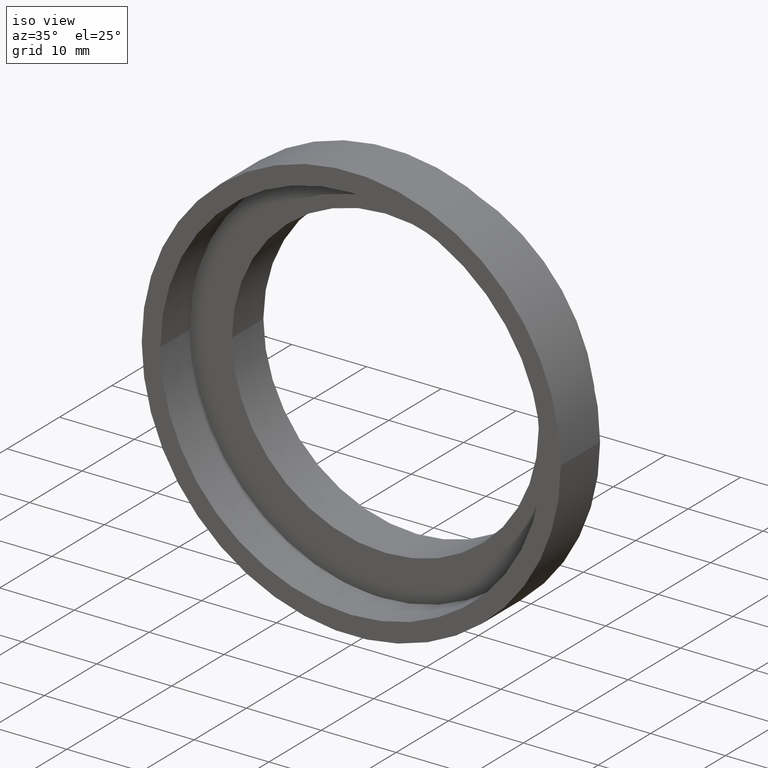
[diagram: clean part render]
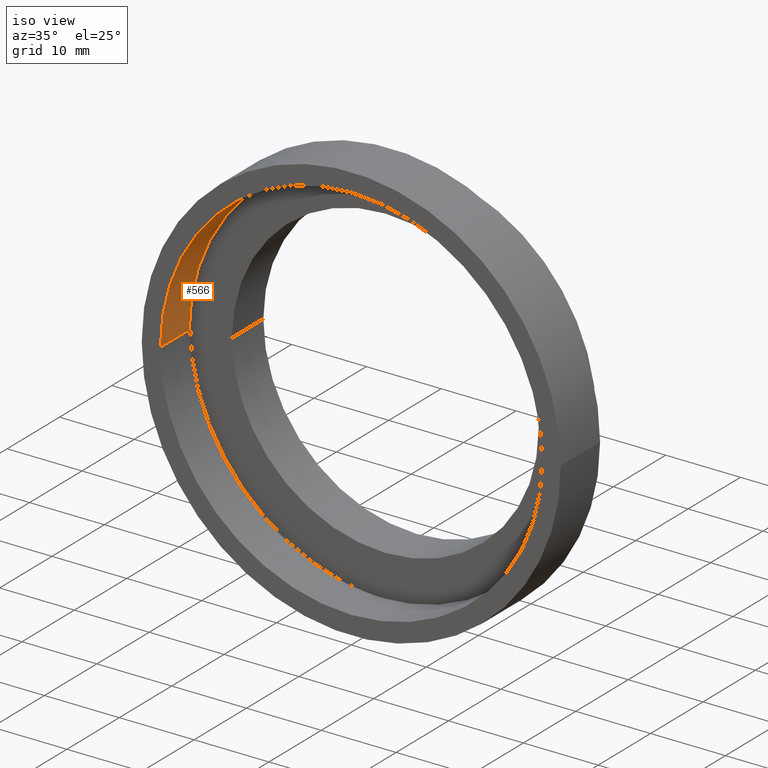
[diagram: same view with one face highlighted and labeled with its STEP entity id]
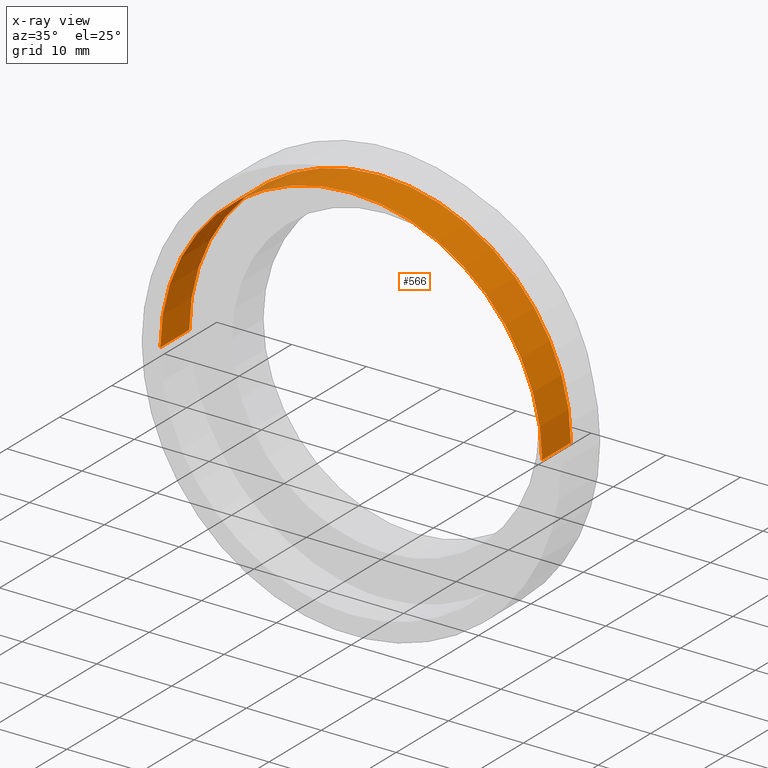
[diagram: x-ray of the same camera — body ghosted, the highlighted face saturated]
A machine part, iso view. The second image highlights one B-rep face of the part: STEP entity #566.
The next image is the same camera in x-ray: the body ghosted, the highlighted face saturated — about 0% of this face is hidden behind the body in this view.
In plain terms, the highlighted cylindrical surface (partial cylindrical patch) has radius 25.5 mm, axis along (-0, 1, -0).
Its self-contained STEP definition (entity closure, byte-faithful):
#19 = ORIENTED_EDGE ( 'NONE', *, *, #156, .T. ) ;
#31 = CARTESIAN_POINT ( 'NONE',  ( 25.50000000000000400, 5.499999999999998200, 3.122849337825751000E-015 ) ) ;
#43 = CARTESIAN_POINT ( 'NONE',  ( 25.50000000000000400, 16.88601823708208000, 3.122849337825751000E-015 ) ) ;
#54 = DIRECTION ( 'NONE',  ( -1.000000000000000000, -1.360567432138672100E-016, 0.0000000000000000000 ) ) ;
#59 = VERTEX_POINT ( 'NONE', #226 ) ;
#71 = DIRECTION ( 'NONE',  ( -1.000000000000000000, -1.224646799147351200E-016, 0.0000000000000000000 ) ) ;
#87 = DIRECTION ( 'NONE',  ( -1.224646799147351000E-016, 1.000000000000000000, -0.0000000000000000000 ) ) ;
#89 = AXIS2_PLACEMENT_3D ( 'NONE', #541, #87, #171 ) ;
#105 = EDGE_LOOP ( 'NONE', ( #476, #559, #19, #112 ) ) ;
#109 = CIRCLE ( 'NONE', #122, 25.50000000000000000 ) ;
#112 = ORIENTED_EDGE ( 'NONE', *, *, #228, .T. ) ;
#122 = AXIS2_PLACEMENT_3D ( 'NONE', #496, #145, #71 ) ;
#137 = LINE ( 'NONE', #545, #390 ) ;
#145 = DIRECTION ( 'NONE',  ( -1.224646799147351000E-016, 1.000000000000000000, -0.0000000000000000000 ) ) ;
#153 = FACE_OUTER_BOUND ( 'NONE', #105, .T. ) ;
#156 = EDGE_CURVE ( 'NONE', #59, #210, #137, .T. ) ;
#158 = CYLINDRICAL_SURFACE ( 'NONE', #89, 25.50000000000000400 ) ;
#162 = LINE ( 'NONE', #43, #204 ) ;
#171 = DIRECTION ( 'NONE',  ( -1.000000000000000000, -1.360567432138672100E-016, 0.0000000000000000000 ) ) ;
#179 = CIRCLE ( 'NONE', #512, 25.50000000000000400 ) ;
#204 = VECTOR ( 'NONE', #414, 1000.000000000000000 ) ;
#205 = EDGE_CURVE ( 'NONE', #336, #209, #162, .T. ) ;
#209 = VERTEX_POINT ( 'NONE', #31 ) ;
#210 = VERTEX_POINT ( 'NONE', #619 ) ;
#226 = CARTESIAN_POINT ( 'NONE',  ( -25.49999999999999600, -6.592296289779359700E-015, 0.0000000000000000000 ) ) ;
#228 = EDGE_CURVE ( 'NONE', #210, #209, #179, .T. ) ;
#263 = CARTESIAN_POINT ( 'NONE',  ( 25.50000000000000400, -3.465976141278692900E-016, 3.122849337825751000E-015 ) ) ;
#314 = CARTESIAN_POINT ( 'NONE',  ( 1.394385078907593400E-015, 5.499999999999994700, 0.0000000000000000000 ) ) ;
#316 = DIRECTION ( 'NONE',  ( -1.224646799147351000E-016, 1.000000000000000000, -0.0000000000000000000 ) ) ;
#336 = VERTEX_POINT ( 'NONE', #263 ) ;
#390 = VECTOR ( 'NONE', #421, 1000.000000000000000 ) ;
#414 = DIRECTION ( 'NONE',  ( -1.224646799147351000E-016, 1.000000000000000000, -0.0000000000000000000 ) ) ;
#421 = DIRECTION ( 'NONE',  ( -1.224646799147351000E-016, 1.000000000000000000, -0.0000000000000000000 ) ) ;
#425 = EDGE_CURVE ( 'NONE', #59, #336, #109, .T. ) ;
#476 = ORIENTED_EDGE ( 'NONE', *, *, #205, .F. ) ;
#496 = CARTESIAN_POINT ( 'NONE',  ( 2.067940818438636500E-015, -3.469446951953614200E-015, 0.0000000000000000000 ) ) ;
#512 = AXIS2_PLACEMENT_3D ( 'NONE', #314, #316, #54 ) ;
#541 = CARTESIAN_POINT ( 'NONE',  ( 0.0000000000000000000, 16.88601823708207700, 0.0000000000000000000 ) ) ;
#545 = CARTESIAN_POINT ( 'NONE',  ( -25.50000000000000400, 16.88601823708207300, 0.0000000000000000000 ) ) ;
#559 = ORIENTED_EDGE ( 'NONE', *, *, #425, .F. ) ;
#566 = ADVANCED_FACE ( 'NONE', ( #153 ), #158, .F. ) ;
#619 = CARTESIAN_POINT ( 'NONE',  ( -25.50000000000000400, 5.499999999999991100, 0.0000000000000000000 ) ) ;